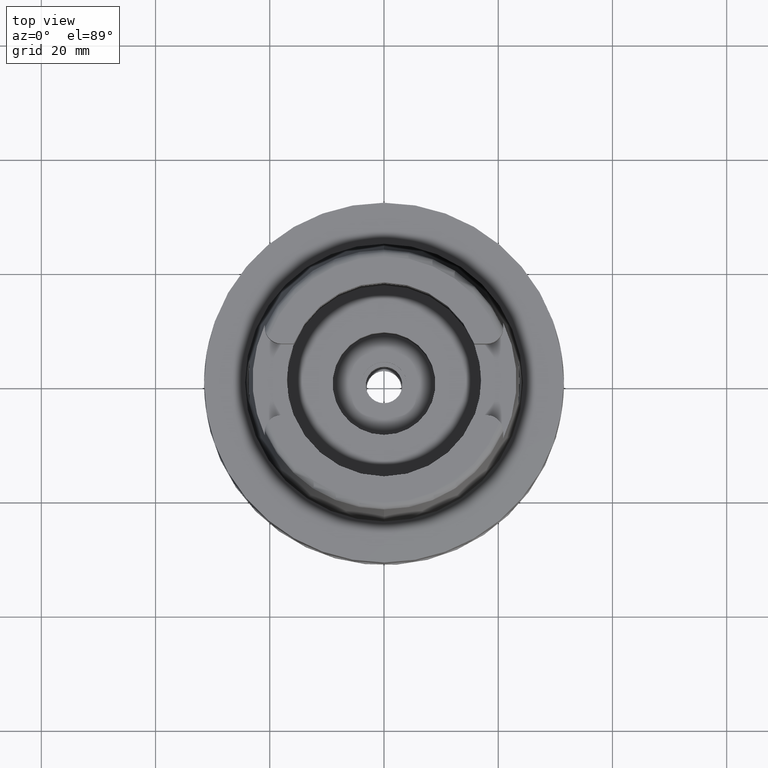
[diagram: clean part render]
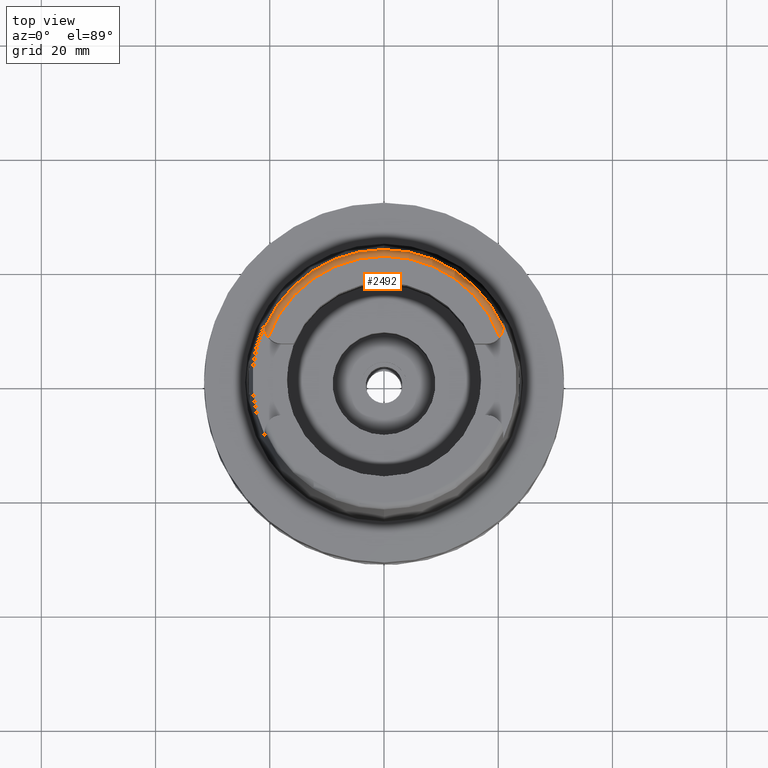
[diagram: same view with one face highlighted and labeled with its STEP entity id]
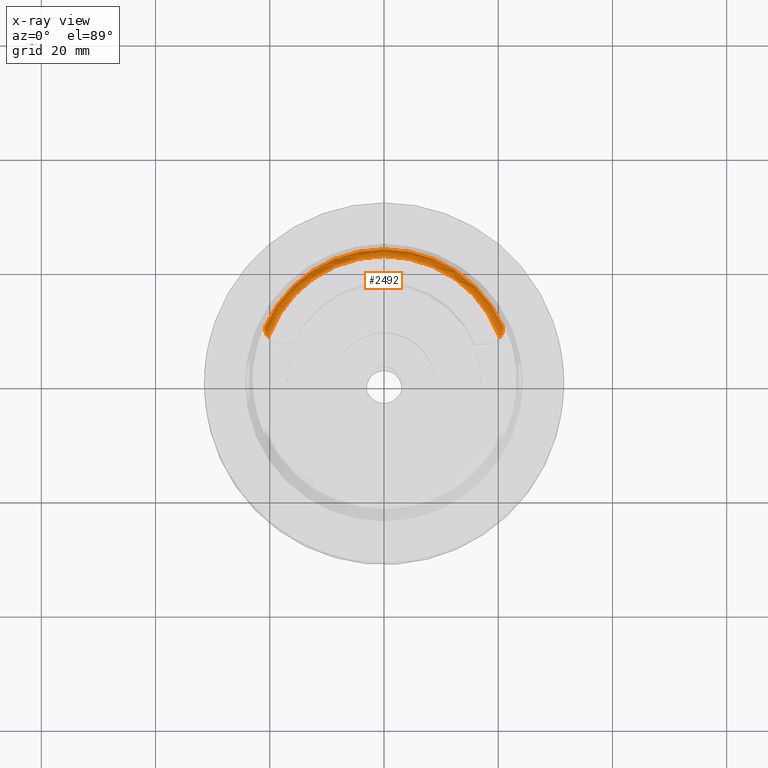
[diagram: x-ray of the same camera — body ghosted, the highlighted face saturated]
A machine part, top view. The second image highlights one B-rep face of the part: STEP entity #2492.
The next image is the same camera in x-ray: the body ghosted, the highlighted face saturated — about 0% of this face is hidden behind the body in this view.
In plain terms, the highlighted toroidal blend (fillet) surface has major radius 21.5735 mm and minor (blend) radius 1.2 mm.
Its self-contained STEP definition (entity closure, byte-faithful):
#77 = VERTEX_POINT ( 'NONE', #1215 ) ;
#128 = EDGE_CURVE ( 'NONE', #946, #77, #160, .T. ) ;
#148 = CARTESIAN_POINT ( 'NONE',  ( 20.84391612278910699, 8.762591610177866031, 31.40354556124749763 ) ) ;
#160 = B_SPLINE_CURVE_WITH_KNOTS ( 'NONE', 3,
 ( #2624, #2961, #4653, #3836, #3078, #825, #2564, #2141, #1715, #3445, #5151, #3021, #3138, #3601, #3190, #2326, #5350, #3106, #3623, #1481, #1804, #5299, #5236, #3219, #3534, #1397, #1425, #972, #3163, #174, #4802, #4861, #3974, #148, #4028, #2352, #941, #4467, #5325, #4836, #2683, #4919 ),
 .UNSPECIFIED., .F., .F.,
 ( 4, 2, 2, 1, 1, 1, 2, 2, 2, 2, 2, 2, 2, 2, 1, 1, 2, 2, 2, 1, 2, 2, 2, 4 ),
 ( 0.0000000000000000000, 0.1250000000001470490, 0.1875000000002224609, 0.2187500000002593203, 0.2343750000002780831, 0.2421875000002887135, 0.2460937500002934319, 0.2500000000002982059, 0.3125000000003351208, 0.3437500000003541611, 0.3593750000003632650, 0.3750000000003723688, 0.4375000000004069522, 0.4687500000004243272, 0.4843750000004352074, 0.4921875000004405920, 0.4960937500004398149, 0.5000000000004389822, 0.5625000000003750333, 0.5937500000003469447, 0.6093750000003317346, 0.6250000000003164136, 0.7500000000002087219, 1.000000000000000000 ),
 .UNSPECIFIED. ) ;
#174 = CARTESIAN_POINT ( 'NONE',  ( 20.81774120906007752, 8.603843596577442909, 31.53034604977459665 ) ) ;
#217 = CARTESIAN_POINT ( 'NONE',  ( -20.74451238710147294, 8.309014603739022675, 31.71778359779951018 ) ) ;
#264 = B_SPLINE_CURVE_WITH_KNOTS ( 'NONE', 3,
 ( #1147, #1121, #2885, #4689, #3316, #1549, #3422, #5123, #5585, #2424, #2147, #2997, #2445, #4121, #217, #5448, #408, #4242, #862, #4988, #5157, #3286, #4143, #1255, #4560, #2862, #5420, #2837, #833, #3871, #3451, #670 ),
 .UNSPECIFIED., .F., .F.,
 ( 4, 2, 2, 1, 2, 2, 1, 1, 2, 2, 2, 1, 2, 2, 2, 2, 2, 4 ),
 ( 0.0000000000000000000, 0.1250000000000211220, 0.1875000000000314748, 0.2187500000000366651, 0.2343750000000395795, 0.2500000000000424660, 0.3125000000000476841, 0.3437500000000519584, 0.3593750000000534017, 0.3750000000000547895, 0.4375000000000620615, 0.4687500000000652811, 0.4843750000000642264, 0.5000000000000631717, 0.6250000000000480727, 0.6875000000000414113, 0.7500000000000347500, 1.000000000000000000 ),
 .UNSPECIFIED. ) ;
#408 = CARTESIAN_POINT ( 'NONE',  ( -20.76624536740908411, 8.382383744835538053, 31.67639968737721290 ) ) ;
#504 = CARTESIAN_POINT ( 'NONE',  ( 0.0000000000000000000, 0.0000000000000000000, 30.80000000000000071 ) ) ;
#534 = CARTESIAN_POINT ( 'NONE',  ( -20.26871835884000106, 7.388795116669998997, 32.00000000000000000 ) ) ;
#670 = CARTESIAN_POINT ( 'NONE',  ( -20.86974110883999955, 9.111383540957000093, 30.85992743463999943 ) ) ;
#825 = CARTESIAN_POINT ( 'NONE',  ( 20.56681554210840446, 7.863768861232540708, 31.91456458125760420 ) ) ;
#833 = CARTESIAN_POINT ( 'NONE',  ( -20.86286072312051232, 8.946272088426127311, 31.21421481513317531 ) ) ;
#862 = CARTESIAN_POINT ( 'NONE',  ( -20.79463751646761693, 8.495068254691739540, 31.60582002443616645 ) ) ;
#917 = CARTESIAN_POINT ( 'NONE',  ( 0.0000000000000000000, 22.77198729362000051, 30.85992712280000205 ) ) ;
#941 = CARTESIAN_POINT ( 'NONE',  ( 20.84941571168134544, 8.806190475976567456, 31.36370181477156294 ) ) ;
#946 = VERTEX_POINT ( 'NONE', #2594 ) ;
#972 = CARTESIAN_POINT ( 'NONE',  ( 20.81693067259318042, 8.599656932915090479, 31.53339461087841755 ) ) ;
#1121 = CARTESIAN_POINT ( 'NONE',  ( -20.34012467695508164, 7.481183509159750500, 32.00000000000000000 ) ) ;
#1147 = CARTESIAN_POINT ( 'NONE',  ( -20.26871835884000106, 7.388795116669998997, 32.00000000000000000 ) ) ;
#1215 = CARTESIAN_POINT ( 'NONE',  ( 20.86974092012000170, 9.111384045666000020, 30.85992712280000205 ) ) ;
#1252 = VERTEX_POINT ( 'NONE', #534 ) ;
#1255 = CARTESIAN_POINT ( 'NONE',  ( -20.83245246892717262, 8.679933736762542651, 31.47479093877595702 ) ) ;
#1321 = DIRECTION ( 'NONE',  ( 0.0000000000000000000, 0.0000000000000000000, -1.000000000000000000 ) ) ;
#1357 = EDGE_CURVE ( 'NONE', #1252, #946, #2246, .T. ) ;
#1397 = CARTESIAN_POINT ( 'NONE',  ( 20.81334243153782282, 8.581356629186503326, 31.54659870386011278 ) ) ;
#1425 = CARTESIAN_POINT ( 'NONE',  ( 20.81590593565219294, 8.594383593759385320, 31.53722361431393040 ) ) ;
#1441 = DIRECTION ( 'NONE',  ( 0.0000000000000000000, 0.0000000000000000000, -1.000000000000000000 ) ) ;
#1481 = CARTESIAN_POINT ( 'NONE',  ( 20.74887032914197960, 8.323375771139746249, 31.70980129294725813 ) ) ;
#1549 = CARTESIAN_POINT ( 'NONE',  ( -20.57166504798366446, 7.873143152933312905, 31.91151039305415438 ) ) ;
#1623 = DIRECTION ( 'NONE',  ( -0.9164655183265837390, 0.4001136759951928745, 0.0000000000000000000 ) ) ;
#1715 = CARTESIAN_POINT ( 'NONE',  ( 20.62476682753267809, 7.987038580315968694, 31.86975345558019157 ) ) ;
#1804 = CARTESIAN_POINT ( 'NONE',  ( 20.77204684153386438, 8.402369121528220575, 31.66495578536239464 ) ) ;
#1818 = CARTESIAN_POINT ( 'NONE',  ( 0.0000000000000000000, 0.0000000000000000000, 30.85992712280000205 ) ) ;
#1836 = ORIENTED_EDGE ( 'NONE', *, *, #5435, .F. ) ;
#1983 = CIRCLE ( 'NONE', #3254, 22.77198729362000051 ) ;
#2141 = CARTESIAN_POINT ( 'NONE',  ( 20.61285597427042049, 7.960317454951409744, 31.88015719107296775 ) ) ;
#2147 = CARTESIAN_POINT ( 'NONE',  ( -20.65991697963789164, 8.068653128793776830, 31.83670392017891260 ) ) ;
#2160 = VERTEX_POINT ( 'NONE', #4205 ) ;
#2212 = EDGE_CURVE ( 'NONE', #2160, #4369, #2396, .T. ) ;
#2246 = CIRCLE ( 'NONE', #4115, 21.57348458609000375 ) ;
#2326 = CARTESIAN_POINT ( 'NONE',  ( 20.71219150149686428, 8.209492891605881582, 31.77046614640940092 ) ) ;
#2352 = CARTESIAN_POINT ( 'NONE',  ( 20.84865819417853672, 8.799941547783852513, 31.36953279266906236 ) ) ;
#2396 = CIRCLE ( 'NONE', #2751, 22.77198729362000407 ) ;
#2402 = ORIENTED_EDGE ( 'NONE', *, *, #1357, .T. ) ;
#2424 = CARTESIAN_POINT ( 'NONE',  ( -20.63133700816632654, 8.001980273397878207, 31.86384480606360015 ) ) ;
#2445 = CARTESIAN_POINT ( 'NONE',  ( -20.72347900236318807, 8.242327017764296215, 31.75375230929931902 ) ) ;
#2492 = ADVANCED_FACE ( 'NONE', ( #4364 ), #4981, .T. ) ;
#2564 = CARTESIAN_POINT ( 'NONE',  ( 20.58850557228845446, 7.907623578178854196, 31.89977089015478384 ) ) ;
#2571 = ORIENTED_EDGE ( 'NONE', *, *, #2212, .F. ) ;
#2594 = CARTESIAN_POINT ( 'NONE',  ( 20.26871835884000106, 7.388795116668999796, 32.00000000000000000 ) ) ;
#2605 = EDGE_LOOP ( 'NONE', ( #3653, #2402, #3797, #1836, #2571 ) ) ;
#2624 = CARTESIAN_POINT ( 'NONE',  ( 20.26871835884000106, 7.388795116668999796, 32.00000000000000000 ) ) ;
#2683 = CARTESIAN_POINT ( 'NONE',  ( 20.86957322136354875, 9.098865226816187146, 30.96317869767219477 ) ) ;
#2751 = AXIS2_PLACEMENT_3D ( 'NONE', #3382, #5515, #1623 ) ;
#2779 = DIRECTION ( 'NONE',  ( -0.0009289215035770252184, -0.9999995685523270783, 0.0000000000000000000 ) ) ;
#2837 = CARTESIAN_POINT ( 'NONE',  ( -20.86098671372054625, 8.920806212456776407, 31.24514081478573502 ) ) ;
#2862 = CARTESIAN_POINT ( 'NONE',  ( -20.85342869355370965, 8.839981431172308390, 31.33206417733143923 ) ) ;
#2885 = CARTESIAN_POINT ( 'NONE',  ( -20.40734990404916616, 7.579786600349194714, 31.98820138574054539 ) ) ;
#2961 = CARTESIAN_POINT ( 'NONE',  ( 20.33304124904590893, 7.472018682635272135, 32.00000000000027001 ) ) ;
#2997 = CARTESIAN_POINT ( 'NONE',  ( -20.69142460654726889, 8.148834838184496832, 31.80097265092678782 ) ) ;
#3021 = CARTESIAN_POINT ( 'NONE',  ( 20.63546296670415359, 8.011609905965888956, 31.85992224981587384 ) ) ;
#3062 = DIRECTION ( 'NONE',  ( 0.0000000000000000000, 1.000000000000000000, 0.0000000000000000000 ) ) ;
#3078 = CARTESIAN_POINT ( 'NONE',  ( 20.52256525230889039, 7.777875833878319156, 31.94155067615123755 ) ) ;
#3106 = CARTESIAN_POINT ( 'NONE',  ( 20.73291931554927459, 8.272012412178943563, 31.73789432715711811 ) ) ;
#3138 = CARTESIAN_POINT ( 'NONE',  ( 20.65294849754890194, 8.052341801086583928, 31.84337393706688957 ) ) ;
#3163 = CARTESIAN_POINT ( 'NONE',  ( 20.81759795754167897, 8.603103858608333709, 31.53088437118386977 ) ) ;
#3181 = DIRECTION ( 'NONE',  ( 0.0009289215035771249650, 0.9999995685523269673, 0.0000000000000000000 ) ) ;
#3190 = CARTESIAN_POINT ( 'NONE',  ( 20.70188896150906288, 8.180361606825398368, 31.78483440686564165 ) ) ;
#3219 = CARTESIAN_POINT ( 'NONE',  ( 20.80532088415161240, 8.542444487113042939, 31.57385447632749020 ) ) ;
#3254 = AXIS2_PLACEMENT_3D ( 'NONE', #1818, #1321, #3062 ) ;
#3286 = CARTESIAN_POINT ( 'NONE',  ( -20.81345779761059944, 8.582015745380166649, 31.54615597357425472 ) ) ;
#3316 = CARTESIAN_POINT ( 'NONE',  ( -20.52961179166038264, 7.790366498211402480, 31.93805727513792547 ) ) ;
#3382 = CARTESIAN_POINT ( 'NONE',  ( 0.0000000000000000000, 0.0000000000000000000, 30.85992712280000205 ) ) ;
#3422 = CARTESIAN_POINT ( 'NONE',  ( -20.59212401907502610, 7.915066353707441493, 31.89713083192546961 ) ) ;
#3445 = CARTESIAN_POINT ( 'NONE',  ( 20.62981204722623119, 7.998569759085818909, 31.86516596534942636 ) ) ;
#3451 = CARTESIAN_POINT ( 'NONE',  ( -20.86956695217746827, 9.098397273265661056, 30.96703546154508047 ) ) ;
#3534 = CARTESIAN_POINT ( 'NONE',  ( 20.81082908923166386, 8.568945554752085414, 31.55537315986073921 ) ) ;
#3601 = CARTESIAN_POINT ( 'NONE',  ( 20.67182534972271668, 8.098842094695012150, 31.82349732015554622 ) ) ;
#3623 = CARTESIAN_POINT ( 'NONE',  ( 20.74326167526535869, 8.304905905174120306, 31.72005952559520026 ) ) ;
#3637 = DIRECTION ( 'NONE',  ( 0.0000000000000000000, 0.0000000000000000000, -1.000000000000000000 ) ) ;
#3653 = ORIENTED_EDGE ( 'NONE', *, *, #4197, .F. ) ;
#3797 = ORIENTED_EDGE ( 'NONE', *, *, #128, .T. ) ;
#3836 = CARTESIAN_POINT ( 'NONE',  ( 20.49191029869871983, 7.723038470854681314, 31.95606943798489397 ) ) ;
#3871 = CARTESIAN_POINT ( 'NONE',  ( -20.86947579205054737, 9.050200674156192449, 31.07591100075064006 ) ) ;
#3974 = CARTESIAN_POINT ( 'NONE',  ( 20.84045556594079329, 8.737992603054777874, 31.42476258745911011 ) ) ;
#4028 = CARTESIAN_POINT ( 'NONE',  ( 20.84682698406125922, 8.785256941704510325, 31.38303732775600707 ) ) ;
#4115 = AXIS2_PLACEMENT_3D ( 'NONE', #5312, #1441, #3181 ) ;
#4121 = CARTESIAN_POINT ( 'NONE',  ( -20.73622926910932307, 8.282348152248268036, 31.73232919270895636 ) ) ;
#4143 = CARTESIAN_POINT ( 'NONE',  ( -20.81577443949874251, 8.593678057703117545, 31.53776546779238288 ) ) ;
#4197 = EDGE_CURVE ( 'NONE', #1252, #2160, #264, .T. ) ;
#4205 = CARTESIAN_POINT ( 'NONE',  ( -20.86974110883999955, 9.111383540957000093, 30.85992743463999943 ) ) ;
#4242 = CARTESIAN_POINT ( 'NONE',  ( -20.77843955697978373, 8.428118017795638295, 31.64883863173982448 ) ) ;
#4364 = FACE_OUTER_BOUND ( 'NONE', #2605, .T. ) ;
#4369 = VERTEX_POINT ( 'NONE', #917 ) ;
#4467 = CARTESIAN_POINT ( 'NONE',  ( 20.85765965587773962, 8.876384009223112770, 31.29694807774796672 ) ) ;
#4560 = CARTESIAN_POINT ( 'NONE',  ( -20.84258439780048988, 8.748871793856428880, 31.41811773874268710 ) ) ;
#4653 = CARTESIAN_POINT ( 'NONE',  ( 20.39805130922330534, 7.566236943883511756, 31.99007939787586707 ) ) ;
#4689 = CARTESIAN_POINT ( 'NONE',  ( -20.50006265470022981, 7.736609346556440059, 31.95280554296221709 ) ) ;
#4802 = CARTESIAN_POINT ( 'NONE',  ( 20.82624962576377925, 8.648117107483720645, 31.49790915323888285 ) ) ;
#4836 = CARTESIAN_POINT ( 'NONE',  ( 20.86952491403559407, 9.051795352615904733, 31.07318374451727294 ) ) ;
#4861 = CARTESIAN_POINT ( 'NONE',  ( 20.83264425177980428, 8.686168777956503106, 31.46800179643020812 ) ) ;
#4919 = CARTESIAN_POINT ( 'NONE',  ( 20.86974092012000170, 9.111384045666000020, 30.85992712280000205 ) ) ;
#4981 = TOROIDAL_SURFACE ( 'NONE', #5442, 21.57348458609000019, 1.199999999999999956 ) ;
#4988 = CARTESIAN_POINT ( 'NONE',  ( -20.80221308165819138, 8.528131103054812812, 31.58389146482245380 ) ) ;
#5123 = CARTESIAN_POINT ( 'NONE',  ( -20.61168664074061851, 7.957772898939901474, 31.88109209066653094 ) ) ;
#5151 = CARTESIAN_POINT ( 'NONE',  ( 20.63316200642027098, 8.006274722502253027, 31.86207893904893851 ) ) ;
#5157 = CARTESIAN_POINT ( 'NONE',  ( -20.80905445752042482, 8.560549396540839240, 31.56133402126591747 ) ) ;
#5236 = CARTESIAN_POINT ( 'NONE',  ( 20.80100840252503147, 8.522538818685228890, 31.58742175764039217 ) ) ;
#5299 = CARTESIAN_POINT ( 'NONE',  ( 20.78560091534419030, 8.455942789868828413, 31.63133477402604044 ) ) ;
#5312 = CARTESIAN_POINT ( 'NONE',  ( 0.0000000000000000000, 0.0000000000000000000, 32.00000000000000000 ) ) ;
#5325 = CARTESIAN_POINT ( 'NONE',  ( 20.86164572713309795, 8.926779960199390018, 31.24044718566078416 ) ) ;
#5350 = CARTESIAN_POINT ( 'NONE',  ( 20.72772766866308913, 8.256027999893523983, 31.74635699553733659 ) ) ;
#5420 = CARTESIAN_POINT ( 'NONE',  ( -20.85631184916029213, 8.868307106991208499, 31.30320569663414787 ) ) ;
#5435 = EDGE_CURVE ( 'NONE', #4369, #77, #1983, .T. ) ;
#5442 = AXIS2_PLACEMENT_3D ( 'NONE', #504, #3637, #2779 ) ;
#5448 = CARTESIAN_POINT ( 'NONE',  ( -20.74902753589095639, 8.323976167323975162, 31.70945348705100386 ) ) ;
#5515 = DIRECTION ( 'NONE',  ( 0.0000000000000000000, 0.0000000000000000000, -1.000000000000000000 ) ) ;
#5585 = CARTESIAN_POINT ( 'NONE',  ( -20.62452420587333179, 7.986415662099444646, 31.87003088979829712 ) ) ;